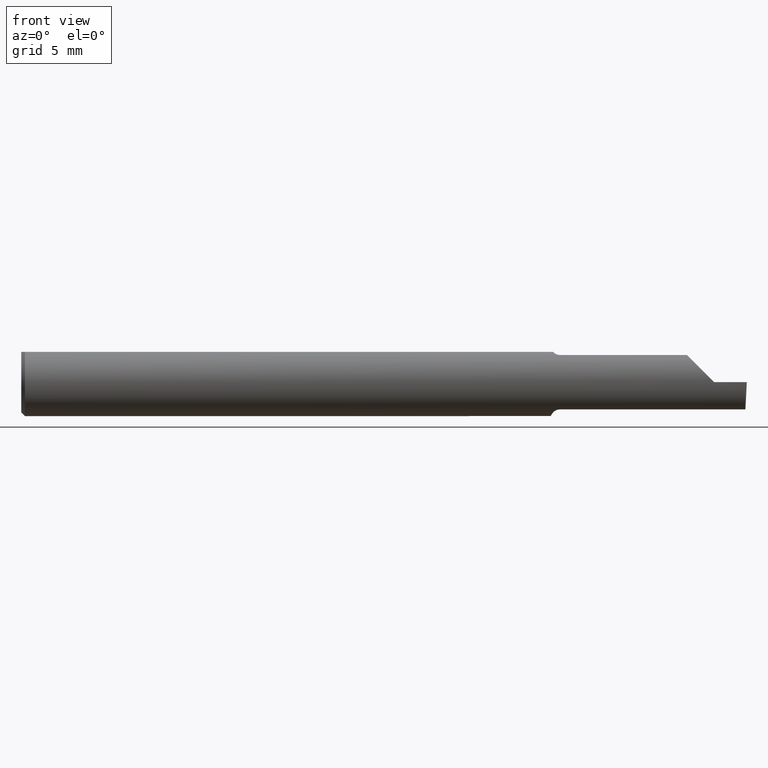
[diagram: clean part render]
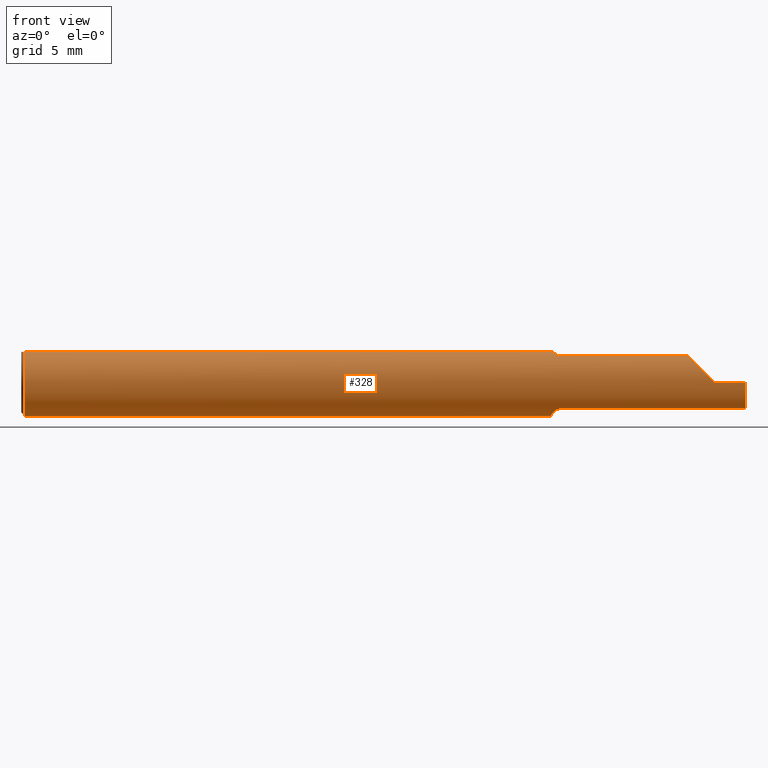
[diagram: same view with one face highlighted and labeled with its STEP entity id]
A machine part, front view. The second image highlights one B-rep face of the part: STEP entity #328.
In plain terms, the highlighted cylindrical surface (edge-blend (fillet) strip) has radius 2.3774 mm, axis along (-1, -0, -0).
Its self-contained STEP definition (entity closure, byte-faithful):
#15 = CARTESIAN_POINT ( 'NONE',  ( 1.484999999999999876, -0.05810704225352104207, 0.07337936794867834511 ) ) ;
#16 = VERTEX_POINT ( 'NONE', #133 ) ;
#23 = CARTESIAN_POINT ( 'NONE',  ( 1.910000000000000142, -0.09360000000000005815, 1.102182119232621301E-17 ) ) ;
#27 = VERTEX_POINT ( 'NONE', #291 ) ;
#30 = ORIENTED_EDGE ( 'NONE', *, *, #221, .F. ) ;
#32 = DIRECTION ( 'NONE',  ( 1.000000000000000000, 0.000000000000000000, 0.000000000000000000 ) ) ;
#37 = CARTESIAN_POINT ( 'NONE',  ( 0.01000000000000016674, -0.04209513035969864037, 0.08359999999999988274 ) ) ;
#43 = CARTESIAN_POINT ( 'NONE',  ( 1.727233979999999836, -0.05810704225352107677, -0.07337936794867833123 ) ) ;
#46 = CARTESIAN_POINT ( 'NONE',  ( 1.910000000000000142, -0.09360000000000005815, 1.102182119232621301E-17 ) ) ;
#51 = CARTESIAN_POINT ( 'NONE',  ( 1.484999999999999876, -0.05810704225352104207, 0.07337936794867834511 ) ) ;
#66 = VERTEX_POINT ( 'NONE', #684 ) ;
#68 =( BOUNDED_CURVE ( )  B_SPLINE_CURVE ( 3, ( #46, #381, #540, #216 ),
 .UNSPECIFIED., .F., .F. ) 
 B_SPLINE_CURVE_WITH_KNOTS ( ( 4, 4 ),
 ( 4.712388980384689674, 5.613420356061720184 ),
 .UNSPECIFIED. ) 
 CURVE ( )  GEOMETRIC_REPRESENTATION_ITEM ( )  RATIONAL_B_SPLINE_CURVE ( ( 1.000000000000000000, 0.9334817841311873199, 0.9334817841311873199, 1.000000000000000000 ) ) 
 REPRESENTATION_ITEM ( '' )  );
#69 = DIRECTION ( 'NONE',  ( 1.000000000000000000, 3.351349113377345711E-17, 0.000000000000000000 ) ) ;
#91 = DIRECTION ( 'NONE',  ( -1.000000000000000000, -0.000000000000000000, -0.000000000000000000 ) ) ;
#96 = EDGE_LOOP ( 'NONE', ( #615, #589, #549, #377, #422, #640, #667, #636, #354, #543, #30, #116 ) ) ;
#104 = CARTESIAN_POINT ( 'NONE',  ( 1.480292432600753383, -0.05747478081012625389, 0.07388601572377849480 ) ) ;
#113 = CARTESIAN_POINT ( 'NONE',  ( 1.466129652885479473, -0.04209513035970119388, 0.08359999999999991049 ) ) ;
#116 = ORIENTED_EDGE ( 'NONE', *, *, #575, .F. ) ;
#119 = CIRCLE ( 'NONE', #515, 0.09360000000000001652 ) ;
#124 = VERTEX_POINT ( 'NONE', #408 ) ;
#133 = CARTESIAN_POINT ( 'NONE',  ( 1.484999999999999876, -0.05810704225352104901, -0.07337936794867834511 ) ) ;
#135 = EDGE_CURVE ( 'NONE', #322, #27, #285, .T. ) ;
#142 = CARTESIAN_POINT ( 'NONE',  ( 0.000000000000000000, 0.000000000000000000, 0.000000000000000000 ) ) ;
#145 = DIRECTION ( 'NONE',  ( 0.000000000000000000, 0.000000000000000000, -1.000000000000000000 ) ) ;
#153 = LINE ( 'NONE', #43, #554 ) ;
#160 = CARTESIAN_POINT ( 'NONE',  ( 1.461762116932663336, -0.02818790137206265284, -0.08941930521177111901 ) ) ;
#166 = CARTESIAN_POINT ( 'NONE',  ( 1.466206319820905213, -0.04283575577410227847, -0.08338874798717356429 ) ) ;
#171 = CARTESIAN_POINT ( 'NONE',  ( 0.000000000000000000, 0.04209513035969864037, 0.08359999999999988274 ) ) ;
#178 = EDGE_CURVE ( 'NONE', #280, #124, #225, .T. ) ;
#189 = DIRECTION ( 'NONE',  ( 0.000000000000000000, 0.000000000000000000, 1.000000000000000000 ) ) ;
#202 = CARTESIAN_POINT ( 'NONE',  ( 1.459999999999999964, -0.01220003991882283832, -0.09296180880970876526 ) ) ;
#209 = VERTEX_POINT ( 'NONE', #682 ) ;
#215 =( BOUNDED_CURVE ( )  B_SPLINE_CURVE ( 3, ( #426, #350, #675, #244 ),
 .UNSPECIFIED., .F., .F. ) 
 B_SPLINE_CURVE_WITH_KNOTS ( ( 4, 4 ),
 ( 0.2063001339125335731, 1.107331509589563945 ),
 .UNSPECIFIED. ) 
 CURVE ( )  GEOMETRIC_REPRESENTATION_ITEM ( )  RATIONAL_B_SPLINE_CURVE ( ( 1.000000000000000000, 0.9334817841311873199, 0.9334817841311873199, 1.000000000000000000 ) ) 
 REPRESENTATION_ITEM ( '' )  );
#216 = CARTESIAN_POINT ( 'NONE',  ( 1.836620632051321200, -0.05810704225352102820, 0.07337936794867834511 ) ) ;
#219 = CARTESIAN_POINT ( 'NONE',  ( 1.462856118429613828, -0.03323074941465640336, -0.08766015375840491286 ) ) ;
#221 = EDGE_CURVE ( 'NONE', #597, #209, #119, .T. ) ;
#225 = LINE ( 'NONE', #450, #313 ) ;
#238 = DIRECTION ( 'NONE',  ( 0.000000000000000000, 1.000000000000000000, 0.000000000000000000 ) ) ;
#244 = CARTESIAN_POINT ( 'NONE',  ( 1.997057062866469668, -0.09360000000000001652, 0.000000000000000000 ) ) ;
#245 = CARTESIAN_POINT ( 'NONE',  ( 0.000000000000000000, -0.04209513035969864037, 0.08359999999999988274 ) ) ;
#260 = CARTESIAN_POINT ( 'NONE',  ( 1.476308147845286189, -0.05549979236676341743, 0.07538081185522381433 ) ) ;
#263 = CARTESIAN_POINT ( 'NONE',  ( 1.459999999999999964, -0.006757276995305246635, -0.09335576686851605743 ) ) ;
#280 = VERTEX_POINT ( 'NONE', #15 ) ;
#283 = EDGE_CURVE ( 'NONE', #653, #16, #153, .T. ) ;
#285 = CIRCLE ( 'NONE', #474, 0.09360000000000001652 ) ;
#286 = VECTOR ( 'NONE', #91, 39.37007874015748143 ) ;
#291 = CARTESIAN_POINT ( 'NONE',  ( 0.01000000000000016674, 0.04209513035969864037, 0.08359999999999988274 ) ) ;
#303 = EDGE_CURVE ( 'NONE', #367, #570, #532, .T. ) ;
#306 = DIRECTION ( 'NONE',  ( 1.000000000000000000, 0.000000000000000000, 0.000000000000000000 ) ) ;
#313 = VECTOR ( 'NONE', #605, 39.37007874015748143 ) ;
#318 = DIRECTION ( 'NONE',  ( 1.000000000000000000, 0.000000000000000000, 0.000000000000000000 ) ) ;
#319 = CARTESIAN_POINT ( 'NONE',  ( 1.466129652885479473, -0.04209513035970119388, 0.08359999999999991049 ) ) ;
#320 = CARTESIAN_POINT ( 'NONE',  ( 1.482603832840145186, -0.05810704225352097962, 0.07337936794867833123 ) ) ;
#322 = VERTEX_POINT ( 'NONE', #582 ) ;
#328 = ADVANCED_FACE ( 'NONE', ( #472 ), #625, .T. ) ;
#331 = CARTESIAN_POINT ( 'NONE',  ( 1.470033121973953305, -0.04963861219531612995, 0.07943694244057655784 ) ) ;
#339 = CARTESIAN_POINT ( 'NONE',  ( 1.459999999999999964, 0.000000000000000000, 0.000000000000000000 ) ) ;
#350 = CARTESIAN_POINT ( 'NONE',  ( 1.995346537079453419, -0.08092595952420826577, -0.05530971394246250034 ) ) ;
#354 = ORIENTED_EDGE ( 'NONE', *, *, #135, .T. ) ;
#357 = CIRCLE ( 'NONE', #572, 0.09360000000000001652 ) ;
#359 = EDGE_CURVE ( 'NONE', #367, #322, #357, .T. ) ;
#366 = DIRECTION ( 'NONE',  ( -1.000000000000000000, -3.351349113377345711E-17, -0.000000000000000000 ) ) ;
#367 = VERTEX_POINT ( 'NONE', #37 ) ;
#377 = ORIENTED_EDGE ( 'NONE', *, *, #568, .T. ) ;
#381 = CARTESIAN_POINT ( 'NONE',  ( 1.880893035518782730, -0.09359999999999997489, 0.02910696448121682239 ) ) ;
#390 = LINE ( 'NONE', #171, #286 ) ;
#408 = CARTESIAN_POINT ( 'NONE',  ( 1.836620632051321200, -0.05810704225352102820, 0.07337936794867834511 ) ) ;
#410 = CARTESIAN_POINT ( 'NONE',  ( 0.01000000000000016674, 0.000000000000000000, 0.000000000000000000 ) ) ;
#411 = CARTESIAN_POINT ( 'NONE',  ( 2.999519565323742037E-32, -0.09359999999999998876, 2.449293598294716768E-16 ) ) ;
#413 = EDGE_CURVE ( 'NONE', #570, #280, #475, .T. ) ;
#422 = ORIENTED_EDGE ( 'NONE', *, *, #178, .F. ) ;
#426 = CARTESIAN_POINT ( 'NONE',  ( 1.995113740419715231, -0.05810704225352106983, -0.07337936794867833123 ) ) ;
#433 = B_SPLINE_CURVE_WITH_KNOTS ( 'NONE', 3,
 ( #693, #537, #598, #647, #483, #595, #166, #219, #160, #443, #202, #638 ),
 .UNSPECIFIED., .F., .F.,
 ( 4, 2, 2, 2, 2, 4 ),
 ( 1.968126669309073504E-07, 0.0002104342718631983333, 0.0004206717310594657966, 0.0008411466494519999641, 0.001261621567844534294, 0.001682096486237068516 ),
 .UNSPECIFIED. ) ;
#436 = EDGE_CURVE ( 'NONE', #209, #27, #390, .T. ) ;
#438 = CARTESIAN_POINT ( 'NONE',  ( 1.474565501274438528, -0.05415466354550838024, 0.07636456853488574059 ) ) ;
#443 = CARTESIAN_POINT ( 'NONE',  ( 1.460323329158490946, -0.01767221859896418376, -0.09207639555340681181 ) ) ;
#450 = CARTESIAN_POINT ( 'NONE',  ( 1.727233979999999836, -0.05810704225352107677, 0.07337936794867833123 ) ) ;
#456 = EDGE_CURVE ( 'NONE', #653, #66, #215, .T. ) ;
#472 = FACE_OUTER_BOUND ( 'NONE', #96, .T. ) ;
#474 = AXIS2_PLACEMENT_3D ( 'NONE', #590, #318, #145 ) ;
#475 = B_SPLINE_CURVE_WITH_KNOTS ( 'NONE', 3,
 ( #113, #648, #331, #438, #260, #104, #320, #51 ),
 .UNSPECIFIED., .F., .F.,
 ( 4, 2, 2, 4 ),
 ( 4.741820243501051455E-07, 0.0003579866703973869340, 0.0005367429145838985153, 0.0007154991587704100965 ),
 .UNSPECIFIED. ) ;
#483 = CARTESIAN_POINT ( 'NONE',  ( 1.473195691242755956, -0.05295078397730242081, -0.07721567059148473633 ) ) ;
#496 = VERTEX_POINT ( 'NONE', #23 ) ;
#515 = AXIS2_PLACEMENT_3D ( 'NONE', #339, #69, #238 ) ;
#532 = LINE ( 'NONE', #245, #643 ) ;
#534 = CARTESIAN_POINT ( 'NONE',  ( 1.995113740419715231, -0.05810704225352106983, -0.07337936794867833123 ) ) ;
#537 = CARTESIAN_POINT ( 'NONE',  ( 1.482196475348975140, -0.05810704225352104901, -0.07337936794867837287 ) ) ;
#540 = CARTESIAN_POINT ( 'NONE',  ( 1.854690286057536941, -0.08092595952420821026, 0.05530971394246249340 ) ) ;
#543 = ORIENTED_EDGE ( 'NONE', *, *, #436, .F. ) ;
#549 = ORIENTED_EDGE ( 'NONE', *, *, #551, .T. ) ;
#551 = EDGE_CURVE ( 'NONE', #66, #496, #678, .T. ) ;
#554 = VECTOR ( 'NONE', #366, 39.37007874015748143 ) ;
#561 = VECTOR ( 'NONE', #623, 39.37007874015748143 ) ;
#568 = EDGE_CURVE ( 'NONE', #496, #124, #68, .T. ) ;
#570 = VERTEX_POINT ( 'NONE', #319 ) ;
#572 = AXIS2_PLACEMENT_3D ( 'NONE', #410, #306, #681 ) ;
#575 = EDGE_CURVE ( 'NONE', #16, #597, #433, .T. ) ;
#579 = DIRECTION ( 'NONE',  ( -1.000000000000000000, -0.000000000000000000, -0.000000000000000000 ) ) ;
#582 = CARTESIAN_POINT ( 'NONE',  ( 0.01000000000000016674, 0.000000000000000000, -0.09360000000000001652 ) ) ;
#589 = ORIENTED_EDGE ( 'NONE', *, *, #456, .T. ) ;
#590 = CARTESIAN_POINT ( 'NONE',  ( 0.01000000000000016674, 0.000000000000000000, 0.000000000000000000 ) ) ;
#595 = CARTESIAN_POINT ( 'NONE',  ( 1.468379054196076394, -0.04728090127810220811, -0.08090622725813378935 ) ) ;
#597 = VERTEX_POINT ( 'NONE', #263 ) ;
#598 = CARTESIAN_POINT ( 'NONE',  ( 1.479541435880793676, -0.05724930034136796464, -0.07406832579512041825 ) ) ;
#599 = AXIS2_PLACEMENT_3D ( 'NONE', #142, #579, #189 ) ;
#605 = DIRECTION ( 'NONE',  ( 1.000000000000000000, 3.351349113377345711E-17, 0.000000000000000000 ) ) ;
#615 = ORIENTED_EDGE ( 'NONE', *, *, #283, .F. ) ;
#623 = DIRECTION ( 'NONE',  ( -1.000000000000000000, -0.000000000000000000, -0.000000000000000000 ) ) ;
#625 = CYLINDRICAL_SURFACE ( 'NONE', #599, 0.09360000000000001652 ) ;
#636 = ORIENTED_EDGE ( 'NONE', *, *, #359, .T. ) ;
#638 = CARTESIAN_POINT ( 'NONE',  ( 1.459999999999999964, -0.006757276995305246635, -0.09335576686851605743 ) ) ;
#640 = ORIENTED_EDGE ( 'NONE', *, *, #413, .F. ) ;
#643 = VECTOR ( 'NONE', #32, 39.37007874015748143 ) ;
#647 = CARTESIAN_POINT ( 'NONE',  ( 1.475047675231717204, -0.05464443219068155361, -0.07601042893068199469 ) ) ;
#648 = CARTESIAN_POINT ( 'NONE',  ( 1.467870098798738088, -0.04602557371825109767, 0.08162090280442949042 ) ) ;
#653 = VERTEX_POINT ( 'NONE', #534 ) ;
#667 = ORIENTED_EDGE ( 'NONE', *, *, #303, .F. ) ;
#675 = CARTESIAN_POINT ( 'NONE',  ( 1.996040470437265402, -0.09360000000000003040, -0.02910696448121681199 ) ) ;
#678 = LINE ( 'NONE', #411, #561 ) ;
#681 = DIRECTION ( 'NONE',  ( 0.000000000000000000, 0.000000000000000000, -1.000000000000000000 ) ) ;
#682 = CARTESIAN_POINT ( 'NONE',  ( 1.459999999999999964, 0.04209513035969864037, 0.08359999999999988274 ) ) ;
#684 = CARTESIAN_POINT ( 'NONE',  ( 1.997057062866469668, -0.09360000000000001652, 0.000000000000000000 ) ) ;
#693 = CARTESIAN_POINT ( 'NONE',  ( 1.484999999999999876, -0.05810704225352104901, -0.07337936794867834511 ) ) ;